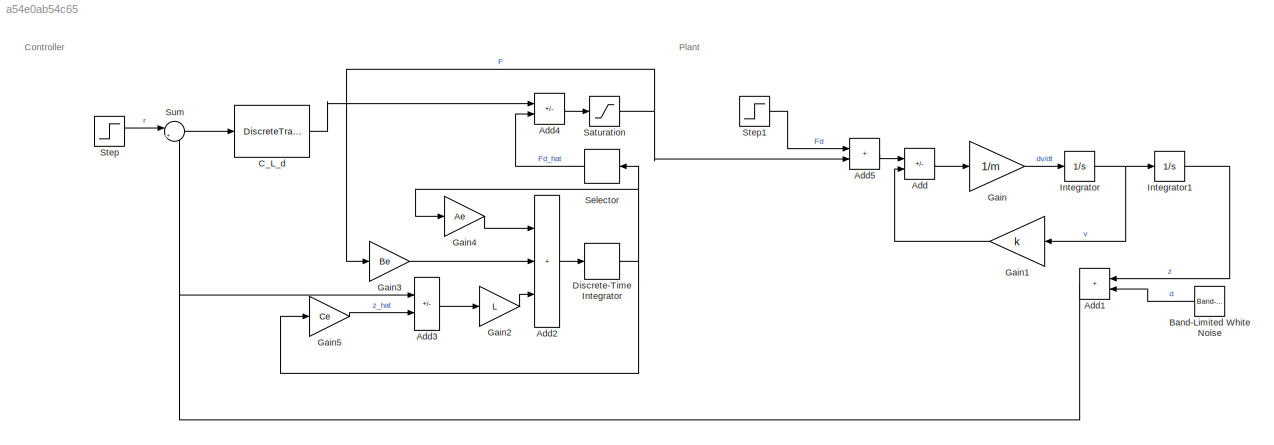
MODEL slx_a54e0ab54c65
KIND model
CONFIG AbsTol = auto
CONFIG EnableMultiTasking = off
CONFIG FixedStep = auto
CONFIG MaxStep = 0.1
CONFIG MinStep = auto
CONFIG RelTol = 1e-3
CONFIG SampleTimeConstraint = Unconstrained
CONFIG SolverName = VariableStepAuto
CONFIG StartTime = 0.0
CONFIG StopTime = 20
BLOCK [Sum] Add
  IconShape = rectangular
  Inputs = +-
BLOCK [Sum] Add1
  IconShape = rectangular
BLOCK [Sum] Add2
  IconShape = rectangular
  Inputs = +++
BLOCK [Sum] Add3
  IconShape = rectangular
  Inputs = +-
BLOCK [Sum] Add4
  IconShape = rectangular
  Inputs = +-
BLOCK [Sum] Add5
  IconShape = rectangular
BLOCK [Reference] Band-Limited White Noise  REF=simulink/Sources/Band-Limited
White Noise
  SourceBlock = simulink/Sources/Band-Limited\nWhite Noise
  SourceType = Band-Limited White Noise.
BLOCK [DiscreteTransferFcn] C_L_d
  Denominator = C_L_d.denominator{1}
  InputPortMap = u0
  Numerator = C_L_d.numerator{1}
BLOCK [DiscreteIntegrator] Discrete-Time Integrator
  ICPrevOutput = DiscIntNeverNeededParam
  ICPrevScaledInput = DiscIntNeverNeededParam
  InitialConditionSetting = Auto
  SampleTime = Ts
BLOCK [Gain] Gain
  Gain = 1/m
BLOCK [Gain] Gain1
  Gain = k
BLOCK [Gain] Gain2
  Gain = L
BLOCK [Gain] Gain3
  Gain = Be
  Multiplication = Matrix(K*u)
BLOCK [Gain] Gain4
  Gain = Ae
  Multiplication = Matrix(K*u)
BLOCK [Gain] Gain5
  Gain = Ce
  Multiplication = Matrix(K*u)
BLOCK [Integrator] Integrator
BLOCK [Integrator] Integrator1
BLOCK [Saturate] Saturation
  LowerLimit = -50
  UpperLimit = 50
BLOCK [Selector] Selector
  IndexOptions = Index vector (dialog)
  Indices = [3]
  InputPortWidth = 3
  OutputSizes = 1
BLOCK [Step] Step
  SampleTime = Ts
BLOCK [Step] Step1
  After = 20
  SampleTime = 0
  Time = 10
BLOCK [Sum] Sum
  Inputs = |+-
ANNOTATION (root): Controller
ANNOTATION (root): Plant
NET Add1:1 -> Add3:1, Sum:2
LINE Add2:1 -> Discrete-Time Integrator:1
LINE Add3:1 -> Gain2:1
LINE Add4:1 -> Saturation:1
LINE Add5:1 -> Add:1
LINE Add:1 -> Gain:1
LINE Band-Limited White Noise:1 -> Add1:2
LINE C_L_d:1 -> Add4:1
NET Discrete-Time Integrator:1 -> Gain4:1, Gain5:1, Selector:1
LINE Gain1:1 -> Add:2
LINE Gain2:1 -> Add2:3
LINE Gain3:1 -> Add2:2
LINE Gain4:1 -> Add2:1
LINE Gain5:1 -> Add3:2
LINE Gain:1 -> Integrator:1
LINE Integrator1:1 -> Add1:1
NET Integrator:1 -> Gain1:1, Integrator1:1
NET Saturation:1 -> Add5:2, Gain3:1
LINE Selector:1 -> Add4:2
LINE Step1:1 -> Add5:1
LINE Step:1 -> Sum:1
LINE Sum:1 -> C_L_d:1
note: NET lines group one-source signal fan-out (src -> all destinations, sorted); 1:1 wires keep LINE
